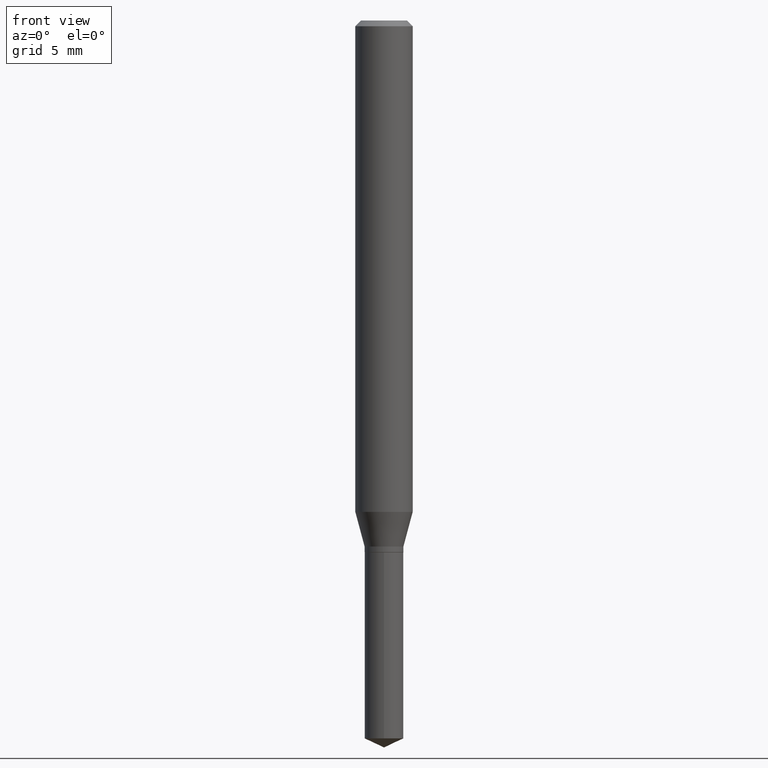
[diagram: clean part render]
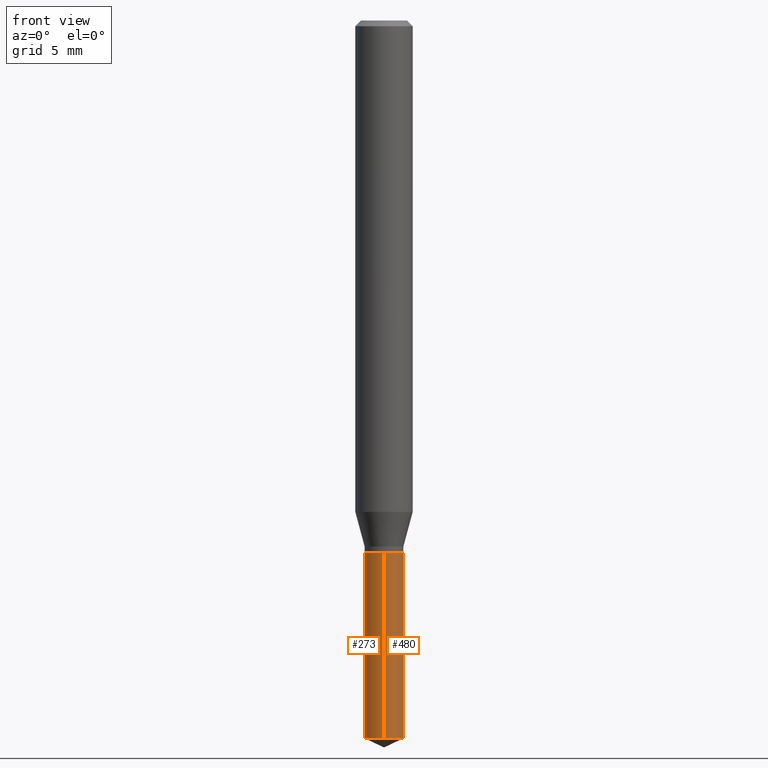
[diagram: same view with one multi-face feature highlighted, each face labeled with its STEP entity id]
A machine part, front view. The highlighted faces form ONE feature: a constant-radius fillet chain: 2 tangent blend faces with common blend radius 1.0147 mm. The faces share edges in the B-rep.
Their STEP definitions:
[1] entity #480 (Cylinder):
#18 = VERTEX_POINT ( 'NONE', #429 ) ;
#32 = EDGE_CURVE ( 'NONE', #451, #201, #35, .T. ) ;
#35 = CIRCLE ( 'NONE', #258, 0.03994999999999999940 ) ;
#40 = ORIENTED_EDGE ( 'NONE', *, *, #32, .F. ) ;
#70 = VECTOR ( 'NONE', #427, 39.37007874015748143 ) ;
#71 = AXIS2_PLACEMENT_3D ( 'NONE', #428, #349, #465 ) ;
#95 = EDGE_CURVE ( 'NONE', #18, #201, #444, .T. ) ;
#103 = DIRECTION ( 'NONE',  ( -2.445458899330790108E-29, 3.491495526022433205E-15, 1.000000000000000000 ) ) ;
#138 = CARTESIAN_POINT ( 'NONE',  ( 2.838618229361961104E-16, 0.03994999999999617607, -1.094500000000000028 ) ) ;
#142 = AXIS2_PLACEMENT_3D ( 'NONE', #293, #103, #264 ) ;
#146 = EDGE_CURVE ( 'NONE', #282, #18, #230, .T. ) ;
#172 = DIRECTION ( 'NONE',  ( -2.445458899330790108E-29, 3.491495526022433205E-15, 1.000000000000000000 ) ) ;
#192 = ORIENTED_EDGE ( 'NONE', *, *, #95, .T. ) ;
#196 = CARTESIAN_POINT ( 'NONE',  ( 2.676565608369631794E-29, -3.821426325363822773E-15, -1.094499999999999806 ) ) ;
#201 = VERTEX_POINT ( 'NONE', #138 ) ;
#213 = DIRECTION ( 'NONE',  ( -2.445458899330790108E-29, 3.491495526022433599E-15, 1.000000000000000000 ) ) ;
#230 = CIRCLE ( 'NONE', #142, 0.03994999999999999940 ) ;
#238 = VECTOR ( 'NONE', #213, 39.37007874015748143 ) ;
#241 = DIRECTION ( 'NONE',  ( -6.982962677686265133E-15, -1.000000000000000000, 3.419083846888940091E-15 ) ) ;
#258 = AXIS2_PLACEMENT_3D ( 'NONE', #196, #172, #241 ) ;
#264 = DIRECTION ( 'NONE',  ( -6.982962677686265133E-15, -1.000000000000000000, 6.838167693777880182E-15 ) ) ;
#271 = EDGE_LOOP ( 'NONE', ( #434, #192, #40, #337 ) ) ;
#272 = CARTESIAN_POINT ( 'NONE',  ( -2.789693589735301393E-16, -0.03995000000000515500, -1.477471009056707585 ) ) ;
#282 = VERTEX_POINT ( 'NONE', #272 ) ;
#287 = LINE ( 'NONE', #387, #70 ) ;
#293 = CARTESIAN_POINT ( 'NONE',  ( 3.613105470653051364E-29, -5.158567890081615658E-15, -1.477471009056707807 ) ) ;
#337 = ORIENTED_EDGE ( 'NONE', *, *, #435, .F. ) ;
#349 = DIRECTION ( 'NONE',  ( -2.445458899330790108E-29, 3.491495526022433205E-15, 1.000000000000000000 ) ) ;
#356 = CARTESIAN_POINT ( 'NONE',  ( -2.789693589735395563E-16, -0.03995000000000382273, -1.094499999999999806 ) ) ;
#363 = CARTESIAN_POINT ( 'NONE',  ( 2.838618229361866934E-16, 0.03994999999999617607, -1.094500000000000028 ) ) ;
#387 = CARTESIAN_POINT ( 'NONE',  ( -2.789693589735395563E-16, -0.03995000000000382273, -1.094499999999999806 ) ) ;
#427 = DIRECTION ( 'NONE',  ( -2.445458899330790108E-29, 3.491495526022433599E-15, 1.000000000000000000 ) ) ;
#428 = CARTESIAN_POINT ( 'NONE',  ( 2.676565608369631794E-29, -3.821426325363822773E-15, -1.094499999999999806 ) ) ;
#429 = CARTESIAN_POINT ( 'NONE',  ( 2.838618229361961597E-16, 0.03994999999999483686, -1.477471009056708251 ) ) ;
#434 = ORIENTED_EDGE ( 'NONE', *, *, #146, .T. ) ;
#435 = EDGE_CURVE ( 'NONE', #282, #451, #287, .T. ) ;
#444 = LINE ( 'NONE', #363, #238 ) ;
#451 = VERTEX_POINT ( 'NONE', #356 ) ;
#465 = DIRECTION ( 'NONE',  ( -6.982962677686265133E-15, -1.000000000000000000, 3.419083846888940091E-15 ) ) ;
#467 = FACE_OUTER_BOUND ( 'NONE', #271, .T. ) ;
#476 = CYLINDRICAL_SURFACE ( 'NONE', #71, 0.03994999999999999940 ) ;
#480 = ADVANCED_FACE ( 'NONE', ( #467 ), #476, .T. ) ;
[2] entity #273 (Cylinder):
#9 = ORIENTED_EDGE ( 'NONE', *, *, #25, .T. ) ;
#18 = VERTEX_POINT ( 'NONE', #429 ) ;
#25 = EDGE_CURVE ( 'NONE', #18, #282, #165, .T. ) ;
#61 = CARTESIAN_POINT ( 'NONE',  ( 3.613105470653051364E-29, -5.158567890081615658E-15, -1.477471009056707807 ) ) ;
#70 = VECTOR ( 'NONE', #427, 39.37007874015748143 ) ;
#84 = FACE_OUTER_BOUND ( 'NONE', #154, .T. ) ;
#95 = EDGE_CURVE ( 'NONE', #18, #201, #444, .T. ) ;
#99 = ORIENTED_EDGE ( 'NONE', *, *, #435, .T. ) ;
#132 = CIRCLE ( 'NONE', #158, 0.03994999999999999940 ) ;
#138 = CARTESIAN_POINT ( 'NONE',  ( 2.838618229361961104E-16, 0.03994999999999617607, -1.094500000000000028 ) ) ;
#154 = EDGE_LOOP ( 'NONE', ( #312, #9, #99, #341 ) ) ;
#155 = CYLINDRICAL_SURFACE ( 'NONE', #416, 0.03994999999999999940 ) ;
#158 = AXIS2_PLACEMENT_3D ( 'NONE', #223, #406, #458 ) ;
#159 = CARTESIAN_POINT ( 'NONE',  ( 2.676565608369631794E-29, -3.821426325363822773E-15, -1.094499999999999806 ) ) ;
#165 = CIRCLE ( 'NONE', #469, 0.03994999999999999940 ) ;
#168 = DIRECTION ( 'NONE',  ( -2.445458899330790108E-29, 3.491495526022433205E-15, 1.000000000000000000 ) ) ;
#201 = VERTEX_POINT ( 'NONE', #138 ) ;
#213 = DIRECTION ( 'NONE',  ( -2.445458899330790108E-29, 3.491495526022433599E-15, 1.000000000000000000 ) ) ;
#223 = CARTESIAN_POINT ( 'NONE',  ( 2.676565608369631794E-29, -3.821426325363822773E-15, -1.094499999999999806 ) ) ;
#227 = DIRECTION ( 'NONE',  ( -2.445458899330790108E-29, 3.491495526022433205E-15, 1.000000000000000000 ) ) ;
#232 = DIRECTION ( 'NONE',  ( -6.982962677686265133E-15, -1.000000000000000000, 3.419083846888940091E-15 ) ) ;
#238 = VECTOR ( 'NONE', #213, 39.37007874015748143 ) ;
#268 = EDGE_CURVE ( 'NONE', #201, #451, #132, .T. ) ;
#272 = CARTESIAN_POINT ( 'NONE',  ( -2.789693589735301393E-16, -0.03995000000000515500, -1.477471009056707585 ) ) ;
#273 = ADVANCED_FACE ( 'NONE', ( #84 ), #155, .T. ) ;
#282 = VERTEX_POINT ( 'NONE', #272 ) ;
#287 = LINE ( 'NONE', #387, #70 ) ;
#312 = ORIENTED_EDGE ( 'NONE', *, *, #95, .F. ) ;
#341 = ORIENTED_EDGE ( 'NONE', *, *, #268, .F. ) ;
#356 = CARTESIAN_POINT ( 'NONE',  ( -2.789693589735395563E-16, -0.03995000000000382273, -1.094499999999999806 ) ) ;
#363 = CARTESIAN_POINT ( 'NONE',  ( 2.838618229361866934E-16, 0.03994999999999617607, -1.094500000000000028 ) ) ;
#387 = CARTESIAN_POINT ( 'NONE',  ( -2.789693589735395563E-16, -0.03995000000000382273, -1.094499999999999806 ) ) ;
#406 = DIRECTION ( 'NONE',  ( -2.445458899330790108E-29, 3.491495526022433205E-15, 1.000000000000000000 ) ) ;
#416 = AXIS2_PLACEMENT_3D ( 'NONE', #159, #227, #232 ) ;
#427 = DIRECTION ( 'NONE',  ( -2.445458899330790108E-29, 3.491495526022433599E-15, 1.000000000000000000 ) ) ;
#429 = CARTESIAN_POINT ( 'NONE',  ( 2.838618229361961597E-16, 0.03994999999999483686, -1.477471009056708251 ) ) ;
#435 = EDGE_CURVE ( 'NONE', #282, #451, #287, .T. ) ;
#444 = LINE ( 'NONE', #363, #238 ) ;
#451 = VERTEX_POINT ( 'NONE', #356 ) ;
#458 = DIRECTION ( 'NONE',  ( -6.982962677686265133E-15, -1.000000000000000000, 3.419083846888940091E-15 ) ) ;
#469 = AXIS2_PLACEMENT_3D ( 'NONE', #61, #168, #475 ) ;
#475 = DIRECTION ( 'NONE',  ( -6.982962677686265133E-15, -1.000000000000000000, 6.838167693777880182E-15 ) ) ;